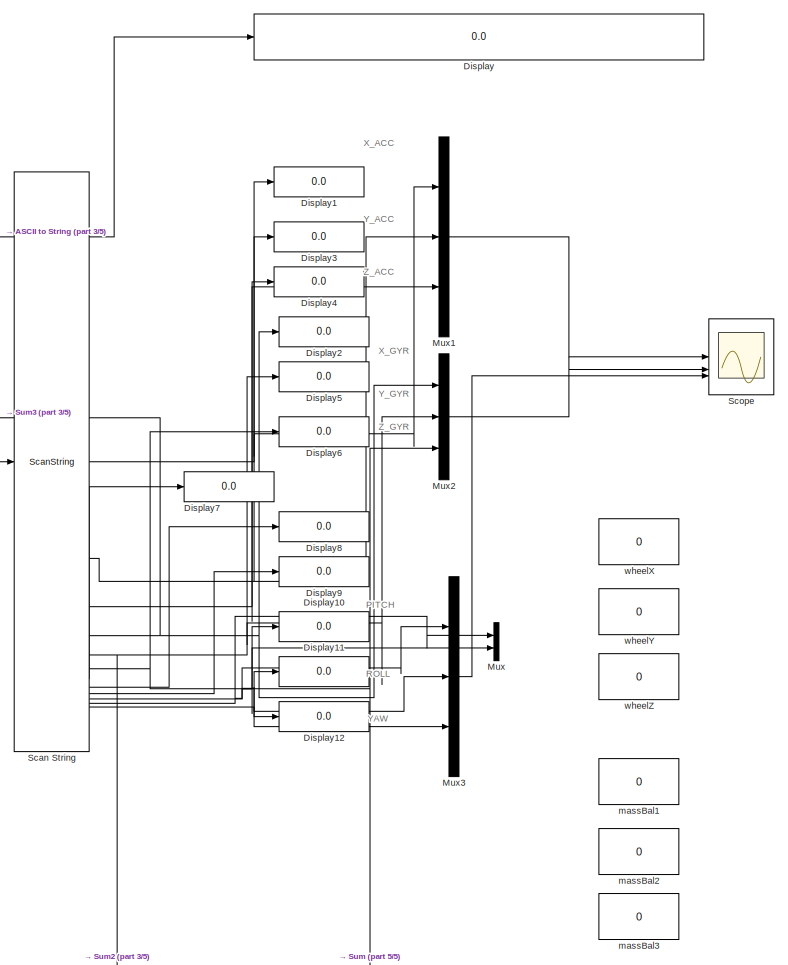
[diagram: root canvas - part 1/5, top right region]
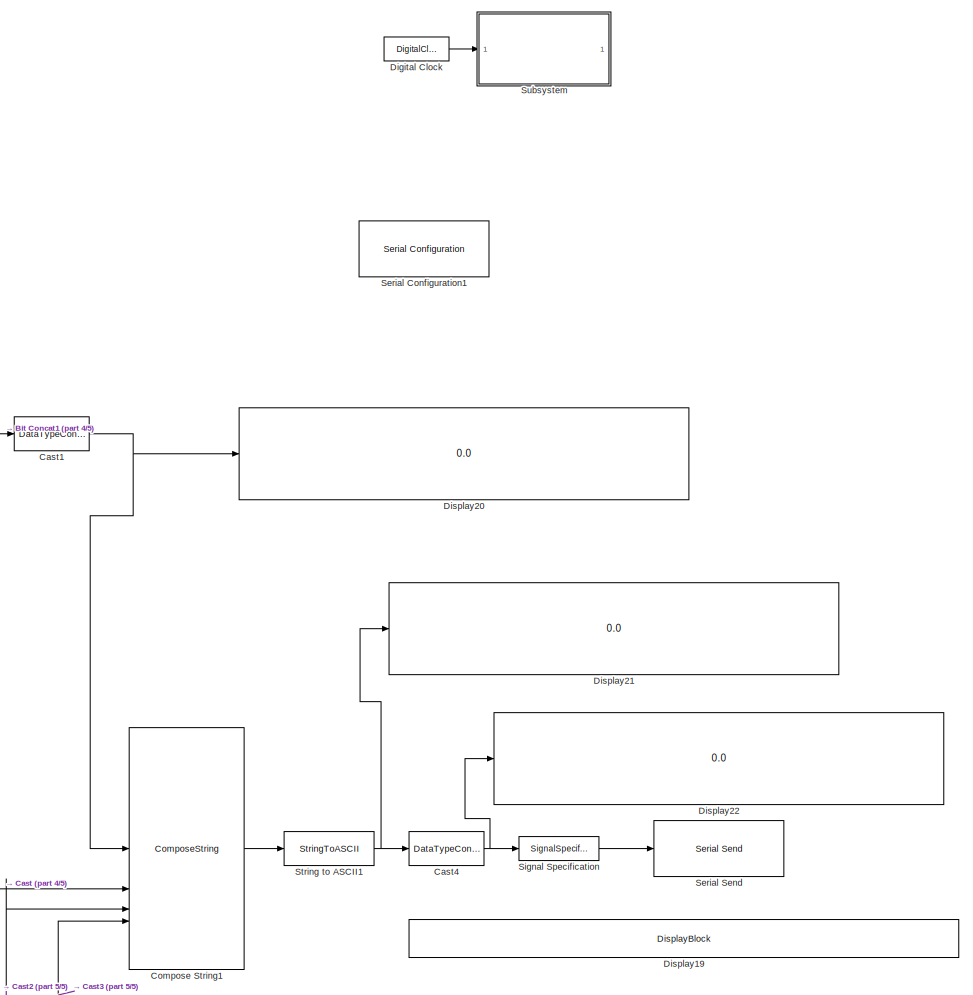
[diagram: root canvas - part 2/5, central region]
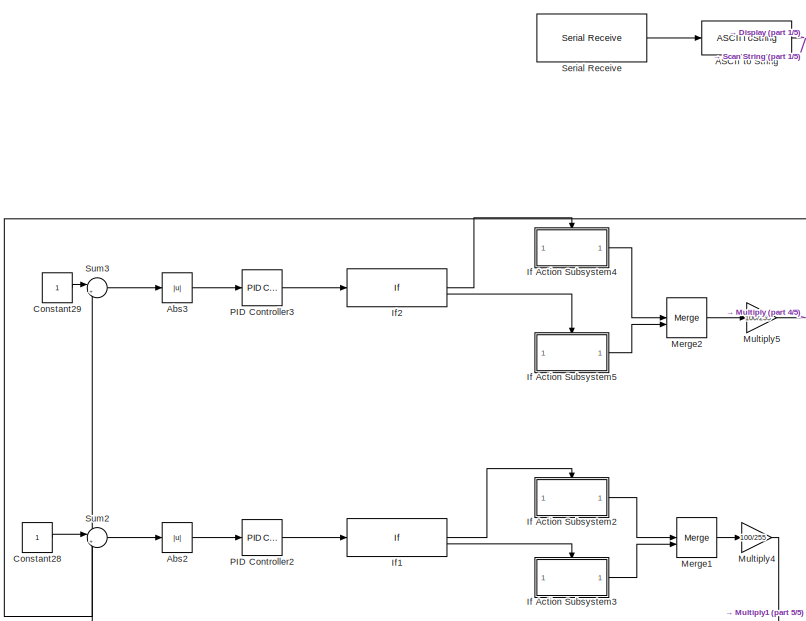
[diagram: root canvas - part 3/5, top center region]
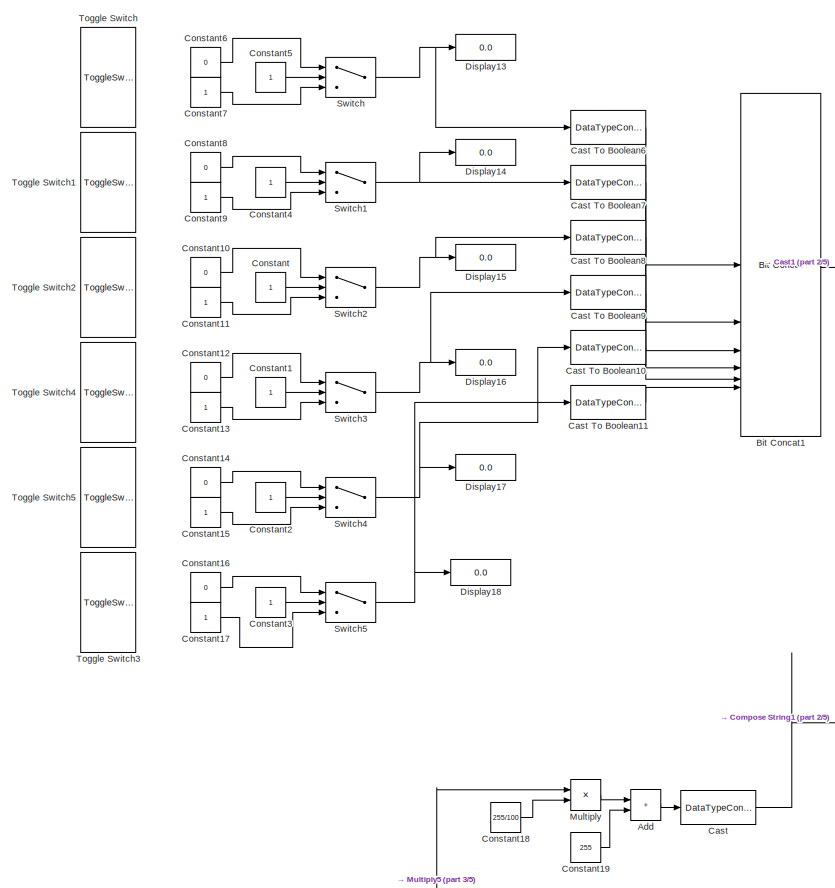
[diagram: root canvas - part 4/5, middle left region]
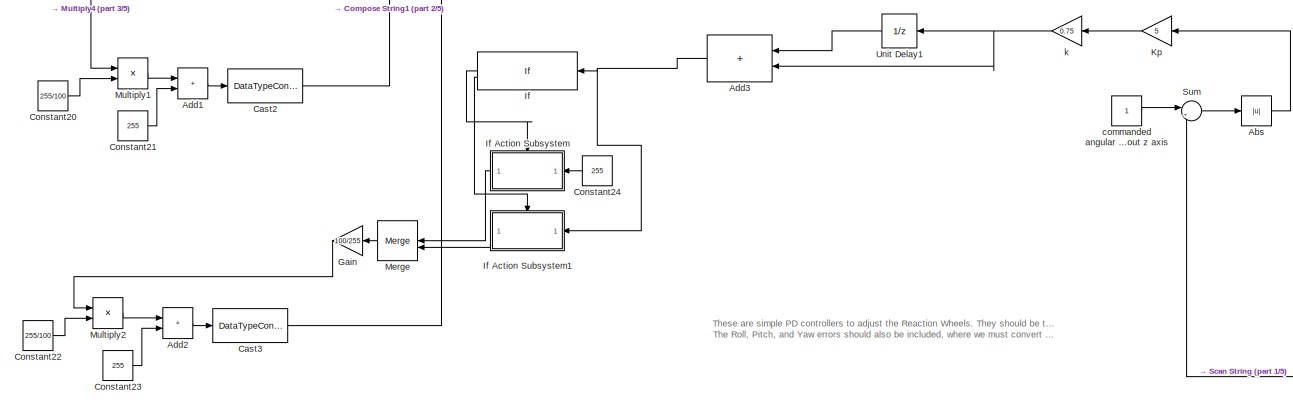
[diagram: root canvas - part 5/5, bottom left region]
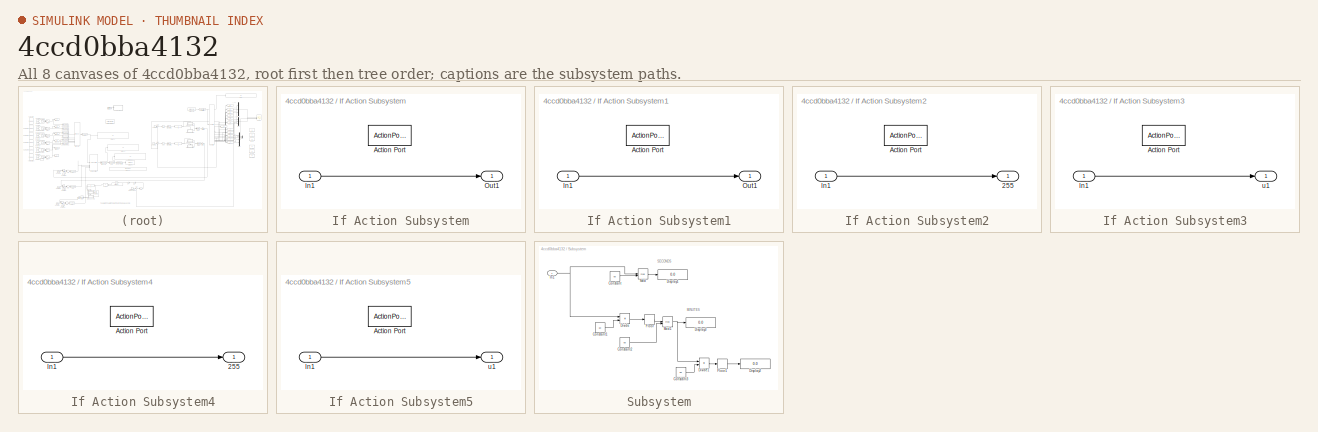
[diagram: thumbnail index - all 8 canvases of the model, root first then tree order]
MODEL slx_4ccd0bba4132
KIND model
CONFIG AbsTol = auto
CONFIG EnableMultiTasking = on
CONFIG FixedStep = .01
CONFIG MaxStep = auto
CONFIG MinStep = auto
CONFIG RelTol = 1e-3
CONFIG SampleTimeConstraint = Unconstrained
CONFIG SolverName = FixedStepAuto
CONFIG StartTime = 0.0
CONFIG StopTime = 100
BLOCK [ASCIIToString] ASCII to String
BLOCK [Abs] Abs
  SaturateOnIntegerOverflow = off
BLOCK [Abs] Abs2
  SaturateOnIntegerOverflow = off
BLOCK [Abs] Abs3
  SaturateOnIntegerOverflow = off
BLOCK [Sum] Add
  IconShape = rectangular
BLOCK [Sum] Add1
  IconShape = rectangular
BLOCK [Sum] Add2
  IconShape = rectangular
BLOCK [Sum] Add3
  IconShape = rectangular
BLOCK [Reference] Bit Concat1  REF=hdlsllib/Logic and Bit
Operations/Bit Concat
  SourceBlock = hdlsllib/Logic and Bit\nOperations/Bit Concat
  SourceType = Bit Concat
BLOCK [DataTypeConversion] Cast
  OutDataTypeStr = int16
  RndMeth = Floor
  SaturateOnIntegerOverflow = off
BLOCK [DataTypeConversion] Cast To Boolean10
  OutDataTypeStr = boolean
  RndMeth = Floor
  SaturateOnIntegerOverflow = off
BLOCK [DataTypeConversion] Cast To Boolean11
  OutDataTypeStr = boolean
  RndMeth = Floor
  SaturateOnIntegerOverflow = off
BLOCK [DataTypeConversion] Cast To Boolean6
  OutDataTypeStr = boolean
  RndMeth = Floor
  SaturateOnIntegerOverflow = off
BLOCK [DataTypeConversion] Cast To Boolean7
  OutDataTypeStr = boolean
  RndMeth = Floor
  SaturateOnIntegerOverflow = off
BLOCK [DataTypeConversion] Cast To Boolean8
  OutDataTypeStr = boolean
  RndMeth = Floor
  SaturateOnIntegerOverflow = off
BLOCK [DataTypeConversion] Cast To Boolean9
  OutDataTypeStr = boolean
  RndMeth = Floor
  SaturateOnIntegerOverflow = off
BLOCK [DataTypeConversion] Cast1
  OutDataTypeStr = int8
  RndMeth = Floor
  SaturateOnIntegerOverflow = off
BLOCK [DataTypeConversion] Cast2
  OutDataTypeStr = int16
  RndMeth = Floor
  SaturateOnIntegerOverflow = off
BLOCK [DataTypeConversion] Cast3
  OutDataTypeStr = int16
  RndMeth = Floor
  SaturateOnIntegerOverflow = off
BLOCK [DataTypeConversion] Cast4
  OutDataTypeStr = int8
  RndMeth = Floor
  SaturateOnIntegerOverflow = off
BLOCK [ComposeString] Compose String1
  Format = "%02d;%03d;%03d;%03d\n"
BLOCK [Constant] Constant
BLOCK [Constant] Constant1
BLOCK [Constant] Constant10
  Value = 0
BLOCK [Constant] Constant11
BLOCK [Constant] Constant12
  Value = 0
BLOCK [Constant] Constant13
BLOCK [Constant] Constant14
  Value = 0
BLOCK [Constant] Constant15
BLOCK [Constant] Constant16
  Value = 0
BLOCK [Constant] Constant17
BLOCK [Constant] Constant18
  Value = 255/100
BLOCK [Constant] Constant19
  Value = 255
BLOCK [Constant] Constant2
BLOCK [Constant] Constant20
  Value = 255/100
BLOCK [Constant] Constant21
  Value = 255
BLOCK [Constant] Constant22
  Value = 255/100
BLOCK [Constant] Constant23
  Value = 255
BLOCK [Constant] Constant24
  Value = 255
BLOCK [Constant] Constant28
BLOCK [Constant] Constant29
BLOCK [Constant] Constant3
BLOCK [Constant] Constant4
BLOCK [Constant] Constant5
BLOCK [Constant] Constant6
  Value = 0
BLOCK [Constant] Constant7
BLOCK [Constant] Constant8
  Value = 0
BLOCK [Constant] Constant9
BLOCK [DigitalClock] Digital Clock
BLOCK [Display] Display
  Decimation = 1
BLOCK [Display] Display1
  Decimation = 1
BLOCK [Display] Display10
  Decimation = 1
BLOCK [Display] Display11
  Decimation = 1
BLOCK [Display] Display12
  Decimation = 1
BLOCK [Display] Display13
  Decimation = 1
BLOCK [Display] Display14
  Decimation = 1
BLOCK [Display] Display15
  Decimation = 1
BLOCK [Display] Display16
  Decimation = 1
BLOCK [Display] Display17
  Decimation = 1
BLOCK [Display] Display18
  Decimation = 1
BLOCK [DisplayBlock] Display19
  Format = long
  LabelPosition = Hide
  Transparency = 1
BLOCK [Display] Display2
  Decimation = 1
BLOCK [Display] Display20
  Decimation = 1
BLOCK [Display] Display21
  Decimation = 1
BLOCK [Display] Display22
  Decimation = 1
BLOCK [Display] Display3
  Decimation = 1
BLOCK [Display] Display4
  Decimation = 1
BLOCK [Display] Display5
  Decimation = 1
BLOCK [Display] Display6
  Decimation = 1
BLOCK [Display] Display7
  Decimation = 1
BLOCK [Display] Display8
  Decimation = 1
BLOCK [Display] Display9
  Decimation = 1
BLOCK [Gain] Gain
  Gain = 100/255
BLOCK [If] If
  IfExpression = u1 > 255
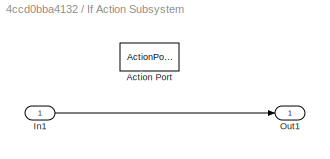
BLOCK [SubSystem] If Action Subsystem
  TreatAsAtomicUnit = on
BLOCK [ActionPort] If Action Subsystem/Action Port
  ActionPortLabel = if(u1 > 255)
BLOCK [Inport] If Action Subsystem/In1
BLOCK [Outport] If Action Subsystem/Out1
BLOCK [SubSystem] If Action Subsystem1
  TreatAsAtomicUnit = on
BLOCK [ActionPort] If Action Subsystem1/Action Port
  ActionPortLabel = else
BLOCK [Inport] If Action Subsystem1/In1
BLOCK [Outport] If Action Subsystem1/Out1
BLOCK [SubSystem] If Action Subsystem2
  TreatAsAtomicUnit = on
BLOCK [Outport] If Action Subsystem2/255
BLOCK [ActionPort] If Action Subsystem2/Action Port
  ActionPortLabel = if(u1 > 255)
BLOCK [Inport] If Action Subsystem2/In1
BLOCK [SubSystem] If Action Subsystem3
  TreatAsAtomicUnit = on
BLOCK [ActionPort] If Action Subsystem3/Action Port
  ActionPortLabel = else
BLOCK [Inport] If Action Subsystem3/In1
BLOCK [Outport] If Action Subsystem3/u1
BLOCK [SubSystem] If Action Subsystem4
  TreatAsAtomicUnit = on
BLOCK [Outport] If Action Subsystem4/255
BLOCK [ActionPort] If Action Subsystem4/Action Port
  ActionPortLabel = if(u1 > 255)
BLOCK [Inport] If Action Subsystem4/In1
BLOCK [SubSystem] If Action Subsystem5
  TreatAsAtomicUnit = on
BLOCK [ActionPort] If Action Subsystem5/Action Port
  ActionPortLabel = else
BLOCK [Inport] If Action Subsystem5/In1
BLOCK [Outport] If Action Subsystem5/u1
BLOCK [If] If1
  IfExpression = u1 > 255
BLOCK [If] If2
  IfExpression = u1 > 255
BLOCK [Gain] Kp
  Gain = 5
BLOCK [Merge] Merge
BLOCK [Merge] Merge1
BLOCK [Merge] Merge2
BLOCK [Product] Multiply
BLOCK [Product] Multiply1
BLOCK [Product] Multiply2
BLOCK [Gain] Multiply4
  Gain = 100/255
BLOCK [Gain] Multiply5
  Gain = 100/255
BLOCK [Mux] Mux
  DisplayOption = bar
  Inputs = 2
BLOCK [Mux] Mux1
  DisplayOption = bar
  Inputs = 3
BLOCK [Mux] Mux2
  DisplayOption = bar
  Inputs = 3
BLOCK [Mux] Mux3
  DisplayOption = bar
  Inputs = 3
BLOCK [Reference] PID Controller2  REF=slpidlib/PID Controller
  LibrarySourceBlock = simulink/Continuous/PID Controller
  SourceBlock = slpidlib/PID Controller
  SourceType = PID 1dof
BLOCK [Reference] PID Controller3  REF=slpidlib/PID Controller
  LibrarySourceBlock = simulink/Continuous/PID Controller
  SourceBlock = slpidlib/PID Controller
  SourceType = PID 1dof
BLOCK [ScanString] Scan String
  Format = "%f,%f,%f,%f,%f,%f,%f,%f,%f,%f,%f,%f"
BLOCK [Scope] Scope
  Floating = off
  NumInputPorts = 3
  ScopeSpecificationString = Simulink.scopes.TimeScopeBlockCfg('CurrentConfiguration', extmgr.ConfigurationSet(extmgr.Configuration('Core','General UI',true),extmgr.Configuration('Core','Source UI',true),extmgr.Configuration('Sources','WiredSimulink',true),extmgr.Configuration('Visuals','Time Domain',true,'SerializedDisplays',{struct('MinYLimReal','-11.18625','MaxYLimReal','94.57625','YLabelReal','','MinYLimMag','0.00000','Ma...<+3450ch>
BLOCK [Reference] Serial Configuration1  REF=instrumentseriallib/Serial Configuration
  LibrarySourceBlock = instrumentlib/Serial Configuration
  Priority = -200000
  SourceBlock = instrumentseriallib/Serial Configuration
  SourceType = system.SerialConfiguration
BLOCK [Reference] Serial Receive  REF=instrumentseriallib/Serial Receive
  LibrarySourceBlock = instrumentlib/Serial Receive
  SourceBlock = instrumentseriallib/Serial Receive
  SourceType = system.SerialReceive
BLOCK [Reference] Serial Send  REF=instrumentseriallib/Serial Send
  LibrarySourceBlock = instrumentlib/Serial Send
  SourceBlock = instrumentseriallib/Serial Send
  SourceType = system.SerialSend
BLOCK [SignalSpecification] Signal Specification
  LockScale = on
  SampleTime = .1
BLOCK [StringToASCII] String to ASCII1
  OutputVectorSize = 15
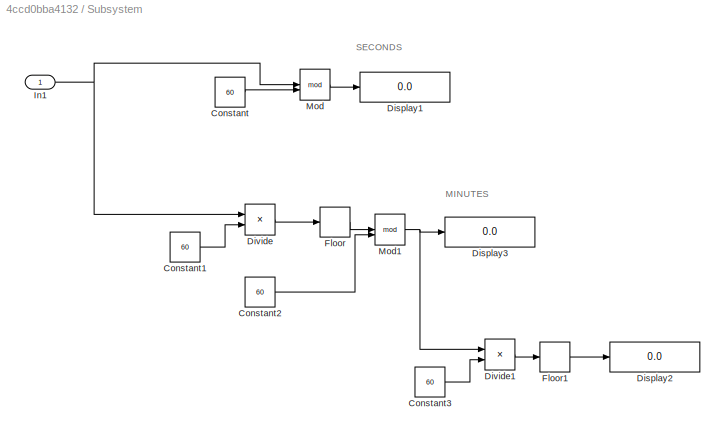
BLOCK [SubSystem] Subsystem
BLOCK [Constant] Subsystem/Constant
  Value = 60
BLOCK [Constant] Subsystem/Constant1
  Value = 60
BLOCK [Constant] Subsystem/Constant2
  Value = 60
BLOCK [Constant] Subsystem/Constant3
  Value = 60
BLOCK [Display] Subsystem/Display1
  Decimation = 1
BLOCK [Display] Subsystem/Display2
  Decimation = 1
BLOCK [Display] Subsystem/Display3
  Decimation = 1
BLOCK [Product] Subsystem/Divide
  Inputs = */
BLOCK [Product] Subsystem/Divide1
  Inputs = */
BLOCK [Rounding] Subsystem/Floor
BLOCK [Rounding] Subsystem/Floor1
BLOCK [Inport] Subsystem/In1
BLOCK [Math] Subsystem/Mod
  Operator = mod
  SignedPower = on
BLOCK [Math] Subsystem/Mod1
  Operator = mod
  SignedPower = on
BLOCK [Sum] Sum
  Inputs = |+-
BLOCK [Sum] Sum2
  Inputs = |+-
BLOCK [Sum] Sum3
  Inputs = |+-
BLOCK [Switch] Switch
  Criteria = u2 > Threshold
  InputSameDT = off
  SaturateOnIntegerOverflow = off
BLOCK [Switch] Switch1
  Criteria = u2 > Threshold
  InputSameDT = off
  SaturateOnIntegerOverflow = off
BLOCK [Switch] Switch2
  Criteria = u2 > Threshold
  InputSameDT = off
  SaturateOnIntegerOverflow = off
BLOCK [Switch] Switch3
  Criteria = u2 > Threshold
  InputSameDT = off
  SaturateOnIntegerOverflow = off
BLOCK [Switch] Switch4
  Criteria = u2 > Threshold
  InputSameDT = off
  SaturateOnIntegerOverflow = off
BLOCK [Switch] Switch5
  Criteria = u2 > Threshold
  InputSameDT = off
  SaturateOnIntegerOverflow = off
BLOCK [ToggleSwitchBlock] Toggle Switch
BLOCK [ToggleSwitchBlock] Toggle Switch1
BLOCK [ToggleSwitchBlock] Toggle Switch2
BLOCK [ToggleSwitchBlock] Toggle Switch3
BLOCK [ToggleSwitchBlock] Toggle Switch4
BLOCK [ToggleSwitchBlock] Toggle Switch5
BLOCK [UnitDelay] Unit Delay1
  HasFrameUpgradeWarning = on
  SampleTime = -1
BLOCK [Constant] commanded angular velocity of spacecraft about z axis
BLOCK [Gain] k
  Gain = 0.75
BLOCK [Constant] massBal1
  Commented = on
  Value = 0
BLOCK [Constant] massBal2
  Commented = on
  Value = 0
BLOCK [Constant] massBal3
  Commented = on
  Value = 0
BLOCK [Constant] wheelX
  Commented = on
  Value = 0
BLOCK [Constant] wheelY
  Commented = on
  Value = 0
BLOCK [Constant] wheelZ
  Commented = on
  Value = 0
ANNOTATION (root): These are simple PD controllers to adjust the Reaction Wheels. They should be tuned on each axis. They take the intended command, calculate the error, and adjust accordingly. The Roll, Pitch, and Yaw errors should also be included, where we must convert Euler Angles to quaternions to then calculate errors.
ANNOTATION (root): PITCH
ANNOTATION (root): ROLL
ANNOTATION (root): X_ACC
ANNOTATION (root): X_GYR
ANNOTATION (root): YAW
ANNOTATION (root): Y_ACC
ANNOTATION (root): Y_GYR
ANNOTATION (root): Z_ACC
ANNOTATION (root): Z_GYR
ANNOTATION Subsystem: MINUTES
ANNOTATION Subsystem: SECONDS
NET ASCII to String:1 -> Display:1, Scan String:1
LINE Abs2:1 -> PID Controller2:1
LINE Abs3:1 -> PID Controller3:1
LINE Abs:1 -> Kp:1
LINE Add1:1 -> Cast2:1
LINE Add2:1 -> Cast3:1
NET Add3:1 -> If Action Subsystem1:1, If:1
LINE Add:1 -> Cast:1
LINE Bit Concat1:1 -> Cast1:1
LINE Cast To Boolean10:1 -> Bit Concat1:5
LINE Cast To Boolean11:1 -> Bit Concat1:6
LINE Cast To Boolean6:1 -> Bit Concat1:1
LINE Cast To Boolean7:1 -> Bit Concat1:2
LINE Cast To Boolean8:1 -> Bit Concat1:3
LINE Cast To Boolean9:1 -> Bit Concat1:4
NET Cast1:1 -> Compose String1:1, Display20:1
LINE Cast2:1 -> Compose String1:3
LINE Cast3:1 -> Compose String1:4
NET Cast4:1 -> Display22:1, Signal Specification:1
LINE Cast:1 -> Compose String1:2
LINE Compose String1:1 -> String to ASCII1:1
LINE Constant10:1 -> Switch2:1
LINE Constant11:1 -> Switch2:3
LINE Constant12:1 -> Switch3:1
LINE Constant13:1 -> Switch3:3
LINE Constant14:1 -> Switch4:1
LINE Constant15:1 -> Switch4:3
LINE Constant16:1 -> Switch5:1
LINE Constant17:1 -> Switch5:3
LINE Constant18:1 -> Multiply:2
LINE Constant19:1 -> Add:2
LINE Constant1:1 -> Switch3:2
LINE Constant20:1 -> Multiply1:2
LINE Constant21:1 -> Add1:2
LINE Constant22:1 -> Multiply2:2
LINE Constant23:1 -> Add2:2
LINE Constant24:1 -> If Action Subsystem:1
LINE Constant28:1 -> Sum2:1
LINE Constant29:1 -> Sum3:1
LINE Constant2:1 -> Switch4:2
LINE Constant3:1 -> Switch5:2
LINE Constant4:1 -> Switch1:2
LINE Constant5:1 -> Switch:2
LINE Constant6:1 -> Switch:1
LINE Constant7:1 -> Switch:3
LINE Constant8:1 -> Switch1:1
LINE Constant9:1 -> Switch1:3
LINE Constant:1 -> Switch2:2
LINE Digital Clock:1 -> Subsystem:1
LINE Gain:1 -> Multiply2:1
LINE If Action Subsystem/In1:1 -> If Action Subsystem/Out1:1
LINE If Action Subsystem1/In1:1 -> If Action Subsystem1/Out1:1
LINE If Action Subsystem1:1 -> Merge:2
LINE If Action Subsystem2/In1:1 -> If Action Subsystem2/255:1
LINE If Action Subsystem2:1 -> Merge1:1
LINE If Action Subsystem3/In1:1 -> If Action Subsystem3/u1:1
LINE If Action Subsystem3:1 -> Merge1:2
LINE If Action Subsystem4/In1:1 -> If Action Subsystem4/255:1
LINE If Action Subsystem4:1 -> Merge2:1
LINE If Action Subsystem5/In1:1 -> If Action Subsystem5/u1:1
LINE If Action Subsystem5:1 -> Merge2:2
LINE If Action Subsystem:1 -> Merge:1
LINE If1:1 -> If Action Subsystem2:ifaction
LINE If1:2 -> If Action Subsystem3:ifaction
LINE If2:1 -> If Action Subsystem4:ifaction
LINE If2:2 -> If Action Subsystem5:ifaction
LINE If:1 -> If Action Subsystem:ifaction
LINE If:2 -> If Action Subsystem1:ifaction
LINE Kp:1 -> k:1
LINE Merge1:1 -> Multiply4:1
LINE Merge2:1 -> Multiply5:1
LINE Merge:1 -> Gain:1
LINE Multiply1:1 -> Add1:1
LINE Multiply2:1 -> Add2:1
LINE Multiply4:1 -> Multiply1:1
LINE Multiply5:1 -> Multiply:1
LINE Multiply:1 -> Add:1
LINE Mux1:1 -> Scope:1
LINE Mux2:1 -> Scope:2
LINE Mux3:1 -> Scope:3
LINE PID Controller2:1 -> If1:1
LINE PID Controller3:1 -> If2:1
NET Scan String:1 -> Display1:1, Mux1:1
NET Scan String:10 -> Display10:1, Mux3:1, Mux:2
NET Scan String:11 -> Display11:1, Mux3:2, Mux:1
NET Scan String:12 -> Display12:1, Mux3:3
NET Scan String:2 -> Display3:1, Mux1:2
NET Scan String:3 -> Display4:1, Mux1:3
NET Scan String:4 -> Display2:1, Mux2:1, Sum3:2
NET Scan String:5 -> Display5:1, Mux2:2, Sum2:2
NET Scan String:6 -> Display6:1, Mux2:3, Sum:2
LINE Scan String:7 -> Display7:1
LINE Scan String:8 -> Display8:1
LINE Scan String:9 -> Display9:1
LINE Serial Receive:1 -> ASCII to String:1
LINE Signal Specification:1 -> Serial Send:1
NET String to ASCII1:1 -> Cast4:1, Display21:1
LINE Subsystem/Constant1:1 -> Subsystem/Divide:2
LINE Subsystem/Constant2:1 -> Subsystem/Mod1:2
LINE Subsystem/Constant3:1 -> Subsystem/Divide1:2
LINE Subsystem/Constant:1 -> Subsystem/Mod:2
LINE Subsystem/Divide1:1 -> Subsystem/Floor1:1
LINE Subsystem/Divide:1 -> Subsystem/Floor:1
LINE Subsystem/Floor1:1 -> Subsystem/Display2:1
LINE Subsystem/Floor:1 -> Subsystem/Mod1:1
NET Subsystem/In1:1 -> Subsystem/Divide:1, Subsystem/Mod:1
NET Subsystem/Mod1:1 -> Subsystem/Display3:1, Subsystem/Divide1:1
LINE Subsystem/Mod:1 -> Subsystem/Display1:1
LINE Sum2:1 -> Abs2:1
LINE Sum3:1 -> Abs3:1
LINE Sum:1 -> Abs:1
NET Switch1:1 -> Cast To Boolean7:1, Display14:1
NET Switch2:1 -> Cast To Boolean8:1, Display15:1
NET Switch3:1 -> Cast To Boolean9:1, Display16:1
NET Switch4:1 -> Cast To Boolean10:1, Display17:1
NET Switch5:1 -> Cast To Boolean11:1, Display18:1
NET Switch:1 -> Cast To Boolean6:1, Display13:1
LINE Unit Delay1:1 -> Add3:1
LINE commanded angular velocity of spacecraft about z axis:1 -> Sum:1
NET k:1 -> Add3:2, Unit Delay1:1
note: NET lines group one-source signal fan-out (src -> all destinations, sorted); 1:1 wires keep LINE
